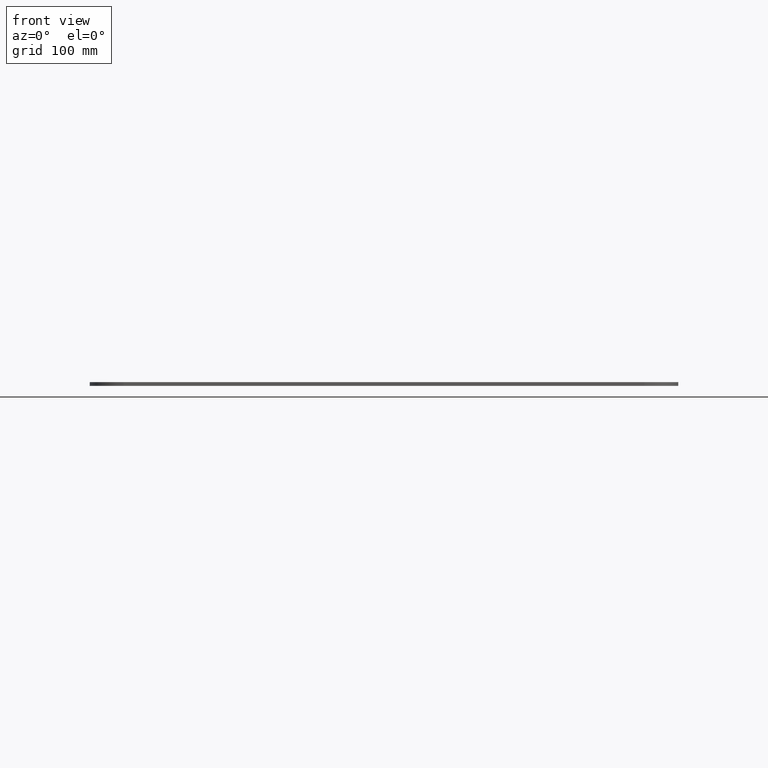
[diagram: clean part render]
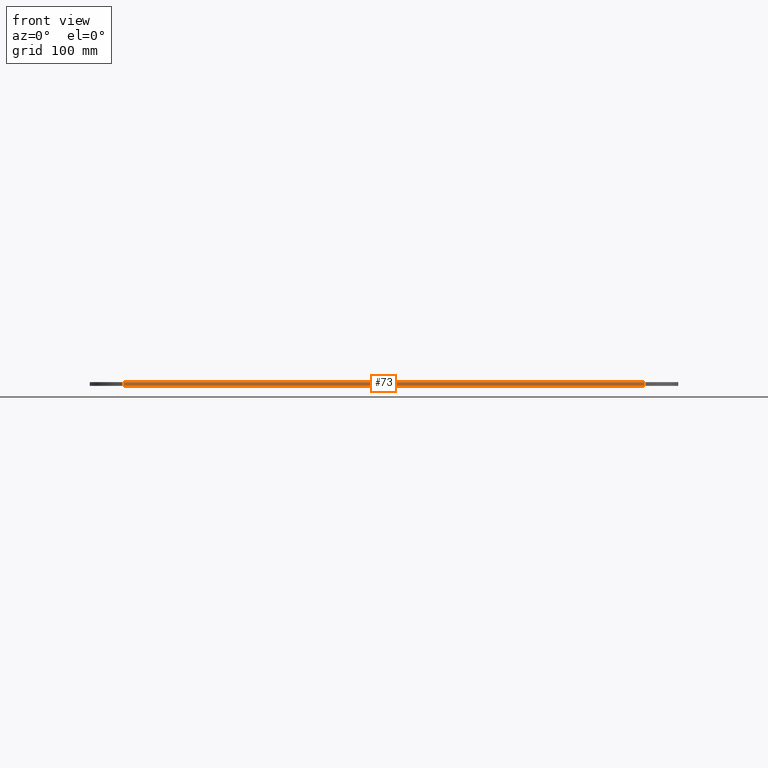
[diagram: same view with one face highlighted and labeled with its STEP entity id]
A machine part, front view. The second image highlights one B-rep face of the part: STEP entity #73.
In plain terms, the highlighted planar face has unit normal (0, 1, 0).
Its self-contained STEP definition (entity closure, byte-faithful):
#66=PLANE('',#366);
#73=ADVANCED_FACE('',(#103),#66,.F.);
#103=FACE_OUTER_BOUND('',#113,.T.);
#113=EDGE_LOOP('',(#190,#191,#192,#193));
#154=LINE('',#511,#170);
#156=LINE('',#517,#172);
#157=LINE('',#519,#173);
#158=LINE('',#521,#174);
#170=VECTOR('',#409,1.);
#172=VECTOR('',#415,1.);
#173=VECTOR('',#416,1.);
#174=VECTOR('',#417,1.);
#190=ORIENTED_EDGE('',*,*,#302,.T.);
#191=ORIENTED_EDGE('',*,*,#303,.F.);
#192=ORIENTED_EDGE('',*,*,#304,.F.);
#193=ORIENTED_EDGE('',*,*,#299,.T.);
#267=VERTEX_POINT('',#510);
#268=VERTEX_POINT('',#512);
#270=VERTEX_POINT('',#518);
#271=VERTEX_POINT('',#520);
#299=EDGE_CURVE('',#268,#267,#154,.T.);
#302=EDGE_CURVE('',#267,#270,#156,.T.);
#303=EDGE_CURVE('',#271,#270,#157,.T.);
#304=EDGE_CURVE('',#268,#271,#158,.T.);
#366=AXIS2_PLACEMENT_3D('',#522,#418,#419);
#409=DIRECTION('',(0.,0.,-1.));
#415=DIRECTION('',(1.,0.,0.));
#416=DIRECTION('',(0.,0.,-1.));
#417=DIRECTION('',(1.,0.,0.));
#418=DIRECTION('',(0.,1.,0.));
#419=DIRECTION('',(0.,0.,1.));
#510=CARTESIAN_POINT('',(730.,-2725.,0.));
#511=CARTESIAN_POINT('',(730.,-2725.,4.));
#512=CARTESIAN_POINT('',(730.,-2725.,4.));
#517=CARTESIAN_POINT('',(730.,-2725.,0.));
#518=CARTESIAN_POINT('',(1270.,-2725.,0.));
#519=CARTESIAN_POINT('',(1270.,-2725.,4.));
#520=CARTESIAN_POINT('',(1270.,-2725.,4.));
#521=CARTESIAN_POINT('',(730.,-2725.,4.));
#522=CARTESIAN_POINT('',(730.,-2725.,4.));